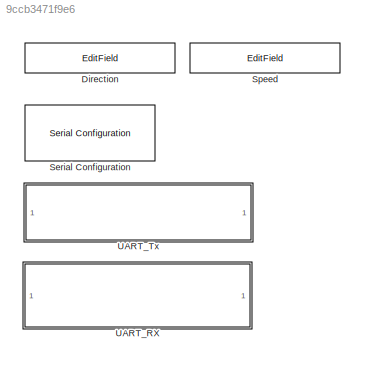
MODEL slx_9ccb3471f9e6
KIND model
CONFIG AbsTol = auto
CONFIG EnableMultiTasking = off
CONFIG FixedStep = auto
CONFIG MaxStep = auto
CONFIG MinStep = auto
CONFIG RelTol = 1e-3
CONFIG SampleTimeConstraint = Unconstrained
CONFIG SolverName = FixedStepAuto
CONFIG StartTime = 0.0
CONFIG StopTime = inf
BLOCK [EditField] Direction
  Alignment = Center
  LabelPosition = Hide
  ShowInitialText = on
BLOCK [Reference] Serial Configuration  REF=instrumentseriallib/Serial Configuration
  Ports = []
  Priority = -200000
  SourceBlock = instrumentseriallib/Serial Configuration
  SourceProductBaseCode = IC
  SourceType = system.SerialConfiguration
BLOCK [EditField] Speed
  Alignment = Center
  LabelPosition = Hide
  ShowInitialText = on
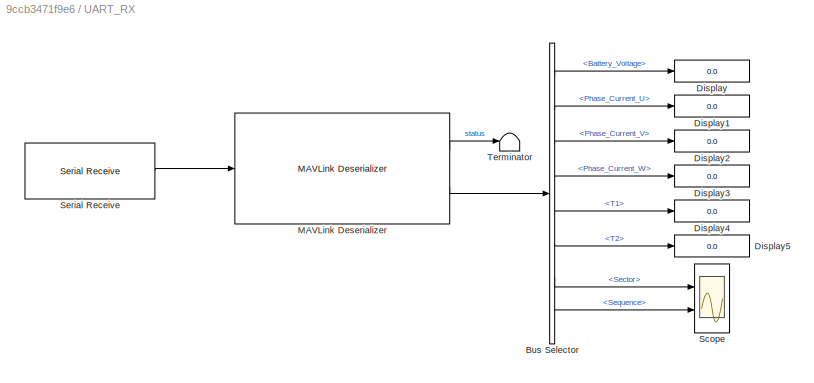
BLOCK [SubSystem] UART_RX
  Ports = []
  RequestExecContextInheritance = off
BLOCK [BusSelector] UART_RX/Bus Selector
  OutputSignals = Payload.Battery_Voltage,Payload.Phase_Current_U,Payload.Phase_Current_V,Payload.Phase_Current_W,Payload.T1,Payload.T2,Payload.Sector,Sequence
  Ports = [1, 8]
BLOCK [Display] UART_RX/Display
  Decimation = 1
  Ports = [1]
BLOCK [Display] UART_RX/Display1
  Decimation = 1
  Ports = [1]
BLOCK [Display] UART_RX/Display2
  Decimation = 1
  Ports = [1]
BLOCK [Display] UART_RX/Display3
  Decimation = 1
  Ports = [1]
BLOCK [Display] UART_RX/Display4
  Decimation = 1
  Ports = [1]
BLOCK [Display] UART_RX/Display5
  Decimation = 1
  Ports = [1]
BLOCK [Reference] UART_RX/MAVLink Deserializer  REF=uavmavlinklib/MAVLink Deserializer
  Ports = [1, 2]
  SourceBlock = uavmavlinklib/MAVLink Deserializer
  SourceProductBaseCode = UV
  SourceType = MAVLink Deserializer
BLOCK [Scope] UART_RX/Scope
  Floating = off
  NumInputPorts = 2
  Ports = [2]
  ScopeSpecificationString = Simulink.scopes.TimeScopeBlockCfg('CurrentConfiguration', extmgr.ConfigurationSet(extmgr.Configuration('Core','General UI',true),extmgr.Configuration('Core','Source UI',true),extmgr.Configuration('Sources','WiredSimulink',true),extmgr.Configuration('Visuals','Time Domain',true,'SerializedDisplays',{struct('MinYLimReal','-1.00000','MaxYLimReal','1.00000','YLabelReal','','MinYLimMag','0.00000','MaxY...<+1368ch>
BLOCK [Reference] UART_RX/Serial Receive  REF=instrumentseriallib/Serial Receive
  Ports = [0, 1]
  Priority = 1
  SourceBlock = instrumentseriallib/Serial Receive
  SourceProductBaseCode = IC
  SourceType = system.SerialReceive
BLOCK [Terminator] UART_RX/Terminator
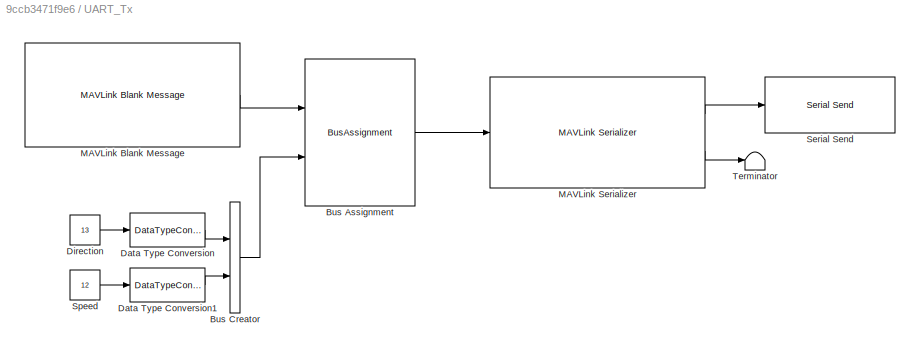
BLOCK [SubSystem] UART_Tx
  Ports = []
  RequestExecContextInheritance = off
BLOCK [BusAssignment] UART_Tx/Bus Assignment
  AssignedSignals = Payload
  Ports = [2, 1]
BLOCK [BusCreator] UART_Tx/Bus Creator
  DisplayOption = bar
  InheritFromInputs = on
  Inputs = 2
  Ports = [2, 1]
BLOCK [DataTypeConversion] UART_Tx/Data Type Conversion
  OutDataTypeStr = uint8
  RndMeth = Floor
  SaturateOnIntegerOverflow = off
BLOCK [DataTypeConversion] UART_Tx/Data Type Conversion1
  OutDataTypeStr = uint8
  RndMeth = Floor
  SaturateOnIntegerOverflow = off
BLOCK [Constant] UART_Tx/Direction
  Value = 13
BLOCK [Reference] UART_Tx/MAVLink Blank Message  REF=uavmavlinklib/MAVLink Blank Message
  Ports = [0, 1]
  SourceBlock = uavmavlinklib/MAVLink Blank Message
  SourceProductBaseCode = UV
  SourceType = MAVLink Blank Message
BLOCK [Reference] UART_Tx/MAVLink Serializer  REF=uavmavlinklib/MAVLink Serializer
  Ports = [1, 2]
  SourceBlock = uavmavlinklib/MAVLink Serializer
  SourceProductBaseCode = UV
  SourceType = MAVLink Serializer
BLOCK [Reference] UART_Tx/Serial Send  REF=instrumentseriallib/Serial Send
  Ports = [1]
  Priority = 1
  SourceBlock = instrumentseriallib/Serial Send
  SourceProductBaseCode = IC
  SourceType = system.SerialSend
BLOCK [Constant] UART_Tx/Speed
  Value = 12
BLOCK [Terminator] UART_Tx/Terminator
LINE UART_RX/Bus Selector:1 -> UART_RX/Display:1
LINE UART_RX/Bus Selector:2 -> UART_RX/Display1:1
LINE UART_RX/Bus Selector:3 -> UART_RX/Display2:1
LINE UART_RX/Bus Selector:4 -> UART_RX/Display3:1
LINE UART_RX/Bus Selector:5 -> UART_RX/Display4:1
LINE UART_RX/Bus Selector:6 -> UART_RX/Display5:1
LINE UART_RX/Bus Selector:7 -> UART_RX/Scope:1
LINE UART_RX/Bus Selector:8 -> UART_RX/Scope:2
LINE UART_RX/MAVLink Deserializer:1 -> UART_RX/Terminator:1
LINE UART_RX/MAVLink Deserializer:2 -> UART_RX/Bus Selector:1
LINE UART_RX/Serial Receive:1 -> UART_RX/MAVLink Deserializer:1
LINE UART_Tx/Bus Assignment:1 -> UART_Tx/MAVLink Serializer:1
LINE UART_Tx/Bus Creator:1 -> UART_Tx/Bus Assignment:2
LINE UART_Tx/Data Type Conversion1:1 -> UART_Tx/Bus Creator:2
LINE UART_Tx/Data Type Conversion:1 -> UART_Tx/Bus Creator:1
LINE UART_Tx/Direction:1 -> UART_Tx/Data Type Conversion:1
LINE UART_Tx/MAVLink Blank Message:1 -> UART_Tx/Bus Assignment:1
LINE UART_Tx/MAVLink Serializer:1 -> UART_Tx/Serial Send:1
LINE UART_Tx/MAVLink Serializer:2 -> UART_Tx/Terminator:1
LINE UART_Tx/Speed:1 -> UART_Tx/Data Type Conversion1:1
